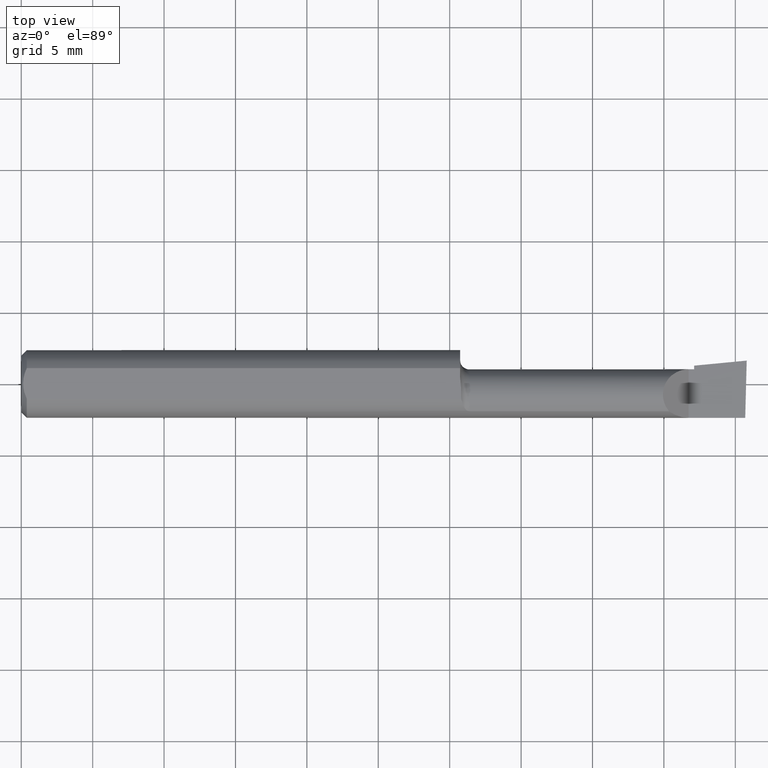
[diagram: clean part render]
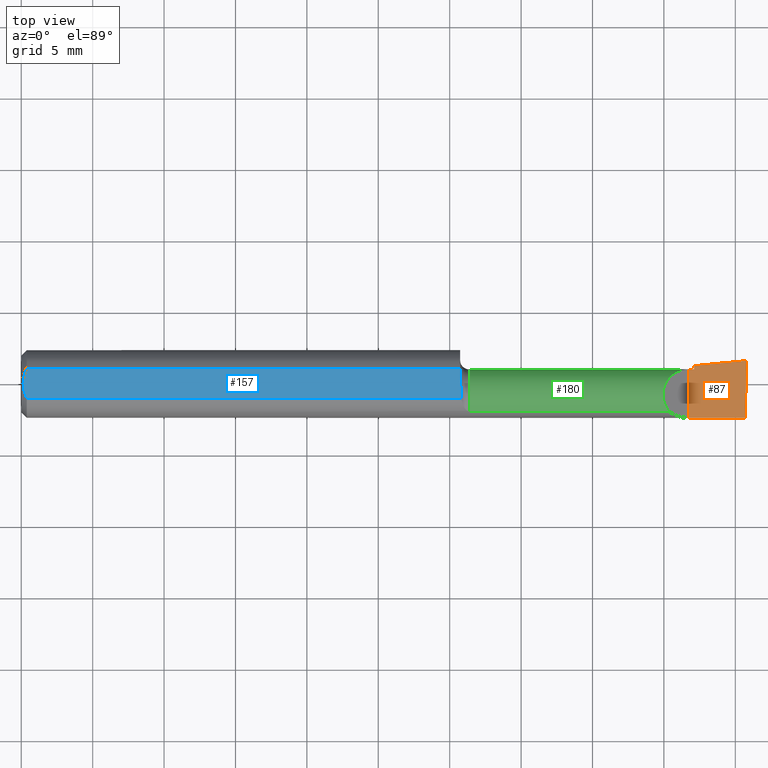
[diagram: same view with three faces highlighted in distinct colors, each labeled with its STEP entity id]
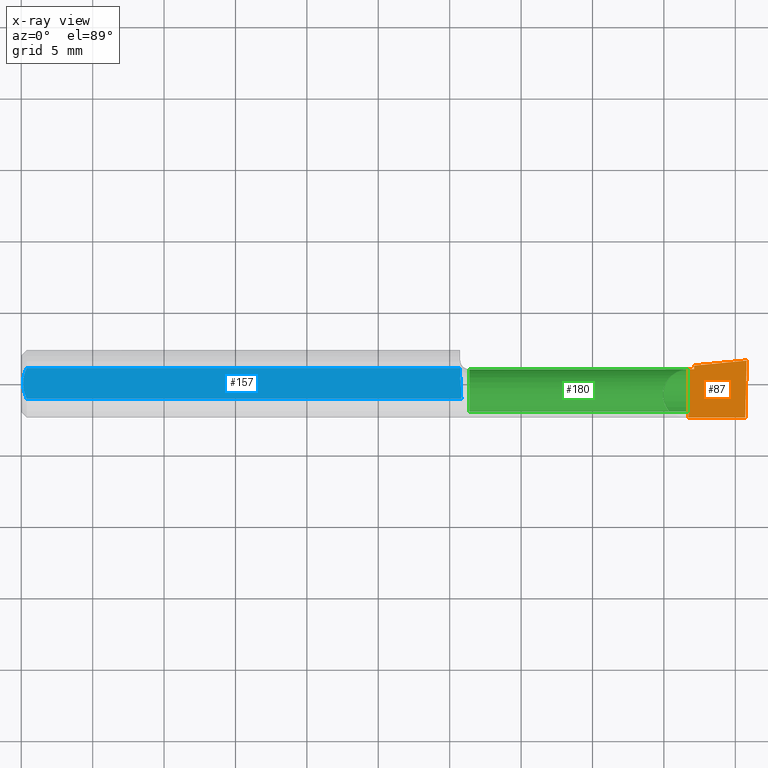
[diagram: x-ray of the same camera — body ghosted, the three highlighted faces saturated]
A machine part, top view with three faces highlighted in distinct colors.
The next image is the same camera in x-ray (body ghosted, the three faces saturated) — at least one of them is partly hidden behind the body in this view.
Their STEP definitions:

[orange] entity #87 — the highlighted planar face has unit normal (-0, 0, -1).
#6 = VECTOR ( 'NONE', #486, 39.37007874015748143 ) ;
#18 = VERTEX_POINT ( 'NONE', #198 ) ;
#30 = CARTESIAN_POINT ( 'NONE',  ( 5.659797890829555466E-31, -0.09359999999999998876, 1.030335658007946046E-15 ) ) ;
#52 = VECTOR ( 'NONE', #259, 39.37007874015748143 ) ;
#55 = PLANE ( 'NONE',  #311 ) ;
#69 = ORIENTED_EDGE ( 'NONE', *, *, #604, .F. ) ;
#75 = LINE ( 'NONE', #30, #246 ) ;
#87 = ADVANCED_FACE ( 'NONE', ( #215 ), #55, .F. ) ;
#110 = CARTESIAN_POINT ( 'NONE',  ( 1.013387277386880392, -0.03060000000000022771, 4.736658843696217583E-16 ) ) ;
#128 = LINE ( 'NONE', #602, #547 ) ;
#131 = EDGE_CURVE ( 'NONE', #390, #307, #219, .T. ) ;
#138 = ORIENTED_EDGE ( 'NONE', *, *, #214, .F. ) ;
#146 = CARTESIAN_POINT ( 'NONE',  ( 1.995862624392068074, -0.09360000000000009979, -6.605666309584466665E-17 ) ) ;
#155 = ORIENTED_EDGE ( 'NONE', *, *, #477, .F. ) ;
#198 = CARTESIAN_POINT ( 'NONE',  ( 1.854999999999999982, 0.05043808801135914177, 1.026577253869148871E-15 ) ) ;
#200 = EDGE_LOOP ( 'NONE', ( #310, #155, #138, #69, #256, #497 ) ) ;
#202 = DIRECTION ( 'NONE',  ( -1.000000000000000000, 0.000000000000000000, 5.493159289247764363E-16 ) ) ;
#214 = EDGE_CURVE ( 'NONE', #618, #18, #315, .T. ) ;
#215 = FACE_OUTER_BOUND ( 'NONE', #200, .T. ) ;
#219 = LINE ( 'NONE', #404, #52 ) ;
#246 = VECTOR ( 'NONE', #552, 39.37007874015748143 ) ;
#256 = ORIENTED_EDGE ( 'NONE', *, *, #419, .F. ) ;
#259 = DIRECTION ( 'NONE',  ( -0.02617694830786939167, -0.9996573249755573709, 1.459184416195897376E-17 ) ) ;
#270 = CARTESIAN_POINT ( 'NONE',  ( 1.854999999999999982, 0.04039999999999999841, 1.030335658007946637E-15 ) ) ;
#277 = CARTESIAN_POINT ( 'NONE',  ( 1.854999999999999982, -0.2500000000000000555, 1.135460985248596835E-17 ) ) ;
#302 = EDGE_CURVE ( 'NONE', #307, #360, #75, .T. ) ;
#307 = VERTEX_POINT ( 'NONE', #146 ) ;
#310 = ORIENTED_EDGE ( 'NONE', *, *, #131, .F. ) ;
#311 = AXIS2_PLACEMENT_3D ( 'NONE', #447, #344, #202 ) ;
#313 = VERTEX_POINT ( 'NONE', #622 ) ;
#315 = LINE ( 'NONE', #277, #401 ) ;
#319 = VECTOR ( 'NONE', #570, 39.37007874015748143 ) ;
#344 = DIRECTION ( 'NONE',  ( -5.493159289247764363E-16, 0.000000000000000000, -1.000000000000000000 ) ) ;
#360 = VERTEX_POINT ( 'NONE', #605 ) ;
#390 = VERTEX_POINT ( 'NONE', #432 ) ;
#391 = CARTESIAN_POINT ( 'NONE',  ( 1.840000000000000080, -0.2500000000000000555, 1.959434878635762025E-17 ) ) ;
#401 = VECTOR ( 'NONE', #592, 39.37007874015748143 ) ;
#404 = CARTESIAN_POINT ( 'NONE',  ( 1.991772787678609324, -0.2497845628634190740, -6.377686106282058433E-17 ) ) ;
#419 = EDGE_CURVE ( 'NONE', #360, #313, #626, .T. ) ;
#432 = CARTESIAN_POINT ( 'NONE',  ( 2.000000000000004441, 0.06440000000001348812, 4.278756920076652249E-14 ) ) ;
#440 = LINE ( 'NONE', #110, #6 ) ;
#447 = CARTESIAN_POINT ( 'NONE',  ( 2.000000000000000000, -0.2500000000000000555, -6.829619984160658046E-17 ) ) ;
#477 = EDGE_CURVE ( 'NONE', #18, #390, #440, .T. ) ;
#486 = DIRECTION ( 'NONE',  ( 0.9953961983671787417, 0.09584575252022466130, -5.467869873542577569E-16 ) ) ;
#497 = ORIENTED_EDGE ( 'NONE', *, *, #302, .F. ) ;
#503 = DIRECTION ( 'NONE',  ( 1.000000000000000000, 4.268512490100411279E-18, 0.000000000000000000 ) ) ;
#547 = VECTOR ( 'NONE', #503, 39.37007874015748143 ) ;
#552 = DIRECTION ( 'NONE',  ( -1.000000000000000000, -0.000000000000000000, -0.000000000000000000 ) ) ;
#570 = DIRECTION ( 'NONE',  ( -0.000000000000000000, 1.000000000000000000, -0.000000000000000000 ) ) ;
#592 = DIRECTION ( 'NONE',  ( -4.268512490100411279E-18, 1.000000000000000000, 2.344761903626518103E-33 ) ) ;
#602 = CARTESIAN_POINT ( 'NONE',  ( -3.030643867965639230E-19, 0.04039999999999993596, 1.030335658007946046E-15 ) ) ;
#604 = EDGE_CURVE ( 'NONE', #313, #618, #128, .T. ) ;
#605 = CARTESIAN_POINT ( 'NONE',  ( 1.840000000000000080, -0.09360000000000005815, 1.959434878635762025E-17 ) ) ;
#618 = VERTEX_POINT ( 'NONE', #270 ) ;
#622 = CARTESIAN_POINT ( 'NONE',  ( 1.840000000000000080, 0.04039999999999985963, 1.959434878635762025E-17 ) ) ;
#626 = LINE ( 'NONE', #391, #319 ) ;

[blue] entity #157 — the highlighted planar face has unit normal (0, -0, -1).
#4 = FACE_OUTER_BOUND ( 'NONE', #188, .T. ) ;
#9 = LINE ( 'NONE', #493, #559 ) ;
#34 = EDGE_CURVE ( 'NONE', #59, #248, #347, .T. ) ;
#50 = CARTESIAN_POINT ( 'NONE',  ( 1.212861144841092864, -0.04209513036041390849, 0.08360000000000000764 ) ) ;
#57 = CARTESIAN_POINT ( 'NONE',  ( 0.005975039161239527503, -0.01453776427033146371, 0.08359999999999996600 ) ) ;
#59 = VERTEX_POINT ( 'NONE', #50 ) ;
#80 = CARTESIAN_POINT ( 'NONE',  ( 0.01500000000000000291, -0.04209513035969835587, 0.08360000000000000764 ) ) ;
#85 = B_SPLINE_CURVE_WITH_KNOTS ( 'NONE', 3,
 ( #455, #318, #364, #321, #274, #267, #369, #177 ),
 .UNSPECIFIED., .F., .F.,
 ( 4, 2, 2, 4 ),
 ( 0.009574067517472211256, 0.01031724332539403835, 0.01068883122935495276, 0.01106041913331586718 ),
 .UNSPECIFIED. ) ;
#94 = VERTEX_POINT ( 'NONE', #103 ) ;
#96 = EDGE_CURVE ( 'NONE', #145, #283, #9, .T. ) ;
#101 = CARTESIAN_POINT ( 'NONE',  ( 0.000000000000000000, -0.04209513035969835587, 0.08360000000000000764 ) ) ;
#103 = CARTESIAN_POINT ( 'NONE',  ( 0.01499999999999999771, 0.04209513035969837669, 0.08360000000000000764 ) ) ;
#105 = CARTESIAN_POINT ( 'NONE',  ( 0.005000000000000237761, 1.025183009042025117E-17, 0.08360000000000000764 ) ) ;
#112 = CARTESIAN_POINT ( 'NONE',  ( 2.000000000000000000, 0.1436000000000000332, 0.08359999999999999376 ) ) ;
#113 = ORIENTED_EDGE ( 'NONE', *, *, #34, .F. ) ;
#126 = LINE ( 'NONE', #355, #303 ) ;
#140 = ORIENTED_EDGE ( 'NONE', *, *, #554, .F. ) ;
#145 = VERTEX_POINT ( 'NONE', #578 ) ;
#148 = B_SPLINE_CURVE_WITH_KNOTS ( 'NONE', 3,
 ( #284, #291, #187, #471, #564, #558 ),
 .UNSPECIFIED., .F., .F.,
 ( 4, 2, 4 ),
 ( 0.006881281100865561072, 0.007427683811376461706, 0.007974086521887361473 ),
 .UNSPECIFIED. ) ;
#157 = ADVANCED_FACE ( 'NONE', ( #4 ), #531, .F. ) ;
#171 = EDGE_CURVE ( 'NONE', #283, #59, #85, .T. ) ;
#177 = CARTESIAN_POINT ( 'NONE',  ( 1.212861144841092864, -0.04209513036041390849, 0.08360000000000000764 ) ) ;
#179 = DIRECTION ( 'NONE',  ( 0.000000000000000000, 1.000000000000000000, -1.189000693621284344E-16 ) ) ;
#187 = CARTESIAN_POINT ( 'NONE',  ( 0.005981829149300847866, 0.01454044632356568667, 0.08360000000000000764 ) ) ;
#188 = EDGE_LOOP ( 'NONE', ( #445, #436, #371, #397, #140, #113 ) ) ;
#199 = CARTESIAN_POINT ( 'NONE',  ( 0.005000000000000237761, 1.025183009042025117E-17, 0.08360000000000000764 ) ) ;
#205 = CARTESIAN_POINT ( 'NONE',  ( 0.01500000000000000291, -0.04209513035969835587, 0.08360000000000000764 ) ) ;
#208 = CARTESIAN_POINT ( 'NONE',  ( 0.005000000000000228220, -0.007328888879231051229, 0.08359999999999999376 ) ) ;
#248 = VERTEX_POINT ( 'NONE', #80 ) ;
#257 = EDGE_CURVE ( 'NONE', #94, #145, #126, .T. ) ;
#267 = CARTESIAN_POINT ( 'NONE',  ( 1.213362255574652604, -0.03233437538769824704, 0.08360000000000003539 ) ) ;
#274 = CARTESIAN_POINT ( 'NONE',  ( 1.213154437539956110, -0.02258334521707476214, 0.08360000000000000764 ) ) ;
#283 = VERTEX_POINT ( 'NONE', #601 ) ;
#284 = CARTESIAN_POINT ( 'NONE',  ( 0.005000000000000237761, 1.025183009042025117E-17, 0.08360000000000000764 ) ) ;
#291 = CARTESIAN_POINT ( 'NONE',  ( 0.005000000000000227353, 0.007308422719211826561, 0.08360000000000000764 ) ) ;
#301 = DIRECTION ( 'NONE',  ( 4.268512490100411279E-18, -1.000000000000000000, 1.189000693621284344E-16 ) ) ;
#303 = VECTOR ( 'NONE', #496, 39.37007874015748143 ) ;
#305 = DIRECTION ( 'NONE',  ( 0.000000000000000000, -1.189000693621284344E-16, -1.000000000000000000 ) ) ;
#318 = CARTESIAN_POINT ( 'NONE',  ( 1.209999999999999742, 0.006742283091807376762, 0.08360000000000003539 ) ) ;
#321 = CARTESIAN_POINT ( 'NONE',  ( 1.212798152027436682, -0.01771129213186534504, 0.08360000000000003539 ) ) ;
#347 = LINE ( 'NONE', #101, #571 ) ;
#353 = DIRECTION ( 'NONE',  ( -1.000000000000000000, -0.000000000000000000, -0.000000000000000000 ) ) ;
#355 = CARTESIAN_POINT ( 'NONE',  ( 0.000000000000000000, 0.04209513035969837669, 0.08360000000000000764 ) ) ;
#364 = CARTESIAN_POINT ( 'NONE',  ( 1.211387404401340406, -0.003099822801829066159, 0.08359999999999999376 ) ) ;
#369 = CARTESIAN_POINT ( 'NONE',  ( 1.213209978243261711, -0.03721340473516406011, 0.08360000000000000764 ) ) ;
#371 = ORIENTED_EDGE ( 'NONE', *, *, #257, .F. ) ;
#383 = EDGE_CURVE ( 'NONE', #439, #94, #148, .T. ) ;
#397 = ORIENTED_EDGE ( 'NONE', *, *, #383, .F. ) ;
#412 = AXIS2_PLACEMENT_3D ( 'NONE', #112, #305, #179 ) ;
#436 = ORIENTED_EDGE ( 'NONE', *, *, #96, .F. ) ;
#439 = VERTEX_POINT ( 'NONE', #199 ) ;
#445 = ORIENTED_EDGE ( 'NONE', *, *, #171, .F. ) ;
#455 = CARTESIAN_POINT ( 'NONE',  ( 1.209999999999999964, 0.01659152466280365210, 0.08360000000000000764 ) ) ;
#471 = CARTESIAN_POINT ( 'NONE',  ( 0.009492654797564340635, 0.02859466010166628394, 0.08359999999999997988 ) ) ;
#493 = CARTESIAN_POINT ( 'NONE',  ( 1.209999999999999964, 0.1436000000000000332, 0.08359999999999999376 ) ) ;
#496 = DIRECTION ( 'NONE',  ( 1.000000000000000000, 0.000000000000000000, 0.000000000000000000 ) ) ;
#531 = PLANE ( 'NONE',  #412 ) ;
#554 = EDGE_CURVE ( 'NONE', #248, #439, #593, .T. ) ;
#558 = CARTESIAN_POINT ( 'NONE',  ( 0.01499999999999999771, 0.04209513035969837669, 0.08360000000000000764 ) ) ;
#559 = VECTOR ( 'NONE', #301, 39.37007874015748143 ) ;
#564 = CARTESIAN_POINT ( 'NONE',  ( 0.01203648650249650870, 0.03550565407121124978, 0.08360000000000000764 ) ) ;
#571 = VECTOR ( 'NONE', #353, 39.37007874015748143 ) ;
#574 = CARTESIAN_POINT ( 'NONE',  ( 0.009539353699420834165, -0.02875682547511369813, 0.08360000000000003539 ) ) ;
#577 = CARTESIAN_POINT ( 'NONE',  ( 0.01206089165507027647, -0.03555991978469315307, 0.08360000000000003539 ) ) ;
#578 = CARTESIAN_POINT ( 'NONE',  ( 1.209999999999999964, 0.04209513035969836975, 0.08360000000000000764 ) ) ;
#593 = B_SPLINE_CURVE_WITH_KNOTS ( 'NONE', 3,
 ( #205, #577, #574, #57, #208, #105 ),
 .UNSPECIFIED., .F., .F.,
 ( 4, 2, 4 ),
 ( 0.005785415439423114564, 0.006333348270144337384, 0.006881281100865561072 ),
 .UNSPECIFIED. ) ;
#601 = CARTESIAN_POINT ( 'NONE',  ( 1.209999999999999964, 0.01659152466280365210, 0.08360000000000000764 ) ) ;

[green] entity #180 — the highlighted cylindrical surface (edge-blend (fillet) strip) has radius 1.8034 mm, axis along (-1, -0, -0).
#1 = CARTESIAN_POINT ( 'NONE',  ( 1.989625015145393139, -0.07608366013071823919, -0.05451822320209416539 ) ) ;
#16 = ORIENTED_EDGE ( 'NONE', *, *, #604, .T. ) ;
#17 = DIRECTION ( 'NONE',  ( 4.268512490100411279E-18, -1.000000000000000000, 0.000000000000000000 ) ) ;
#25 = DIRECTION ( 'NONE',  ( 0.000000000000000000, -1.000000000000000000, 0.000000000000000000 ) ) ;
#41 = CIRCLE ( 'NONE', #95, 0.07100000000000017408 ) ;
#46 = EDGE_CURVE ( 'NONE', #212, #494, #362, .T. ) ;
#47 = CARTESIAN_POINT ( 'NONE',  ( 1.988641161029047755, -0.06318680184005832923, -0.06527786071030766690 ) ) ;
#53 = DIRECTION ( 'NONE',  ( -1.000000000000000000, -4.268512490100411279E-18, -0.000000000000000000 ) ) ;
#76 = VECTOR ( 'NONE', #206, 39.37007874015748143 ) ;
#78 = EDGE_CURVE ( 'NONE', #494, #147, #627, .T. ) ;
#82 =( BOUNDED_CURVE ( )  B_SPLINE_CURVE ( 3, ( #535, #102, #393, #247 ),
 .UNSPECIFIED., .F., .T. ) 
 B_SPLINE_CURVE_WITH_KNOTS ( ( 4, 4 ),
 ( 5.587886473277670518, 7.853981633974482790 ),
 .UNSPECIFIED. ) 
 CURVE ( )  GEOMETRIC_REPRESENTATION_ITEM ( )  RATIONAL_B_SPLINE_CURVE ( ( 1.000000000000000000, 0.6159343746860722613, 0.6159343746860722613, 1.000000000000000000 ) ) 
 REPRESENTATION_ITEM ( '' )  );
#95 = AXIS2_PLACEMENT_3D ( 'NONE', #97, #379, #370 ) ;
#97 = CARTESIAN_POINT ( 'NONE',  ( 1.854999999999999982, -0.03060000000000022424, 0.000000000000000000 ) ) ;
#98 = VERTEX_POINT ( 'NONE', #167 ) ;
#102 = CARTESIAN_POINT ( 'NONE',  ( 1.740893772288689023, -0.02263899945514353737, 0.09910622771130987718 ) ) ;
#123 = DIRECTION ( 'NONE',  ( -1.000000000000000000, 5.691349986800549142E-18, -0.000000000000000000 ) ) ;
#128 = LINE ( 'NONE', #602, #547 ) ;
#147 = VERTEX_POINT ( 'NONE', #154 ) ;
#149 = EDGE_CURVE ( 'NONE', #237, #476, #341, .T. ) ;
#154 = CARTESIAN_POINT ( 'NONE',  ( 1.234999999999999876, -0.07608366013071811429, -0.05451822320209421396 ) ) ;
#161 = DIRECTION ( 'NONE',  ( -1.000000000000000000, -4.268512490100411279E-18, -0.000000000000000000 ) ) ;
#165 = CARTESIAN_POINT ( 'NONE',  ( 1.234999999999999876, -0.03060000000000022771, 0.000000000000000000 ) ) ;
#167 = CARTESIAN_POINT ( 'NONE',  ( 1.854999999999999982, 0.003039038829300973361, -0.06252531540616797223 ) ) ;
#170 = CARTESIAN_POINT ( 'NONE',  ( 0.000000000000000000, -0.03060000000000023118, 0.000000000000000000 ) ) ;
#175 = FACE_OUTER_BOUND ( 'NONE', #406, .T. ) ;
#176 = ORIENTED_EDGE ( 'NONE', *, *, #243, .T. ) ;
#180 = ADVANCED_FACE ( 'NONE', ( #175 ), #226, .T. ) ;
#196 = VECTOR ( 'NONE', #123, 39.37007874015748143 ) ;
#203 = EDGE_CURVE ( 'NONE', #618, #266, #273, .T. ) ;
#206 = DIRECTION ( 'NONE',  ( 1.000000000000000000, 4.268512490100411279E-18, 0.000000000000000000 ) ) ;
#207 = ORIENTED_EDGE ( 'NONE', *, *, #78, .T. ) ;
#212 = VERTEX_POINT ( 'NONE', #233 ) ;
#220 = EDGE_CURVE ( 'NONE', #212, #402, #359, .T. ) ;
#226 = CYLINDRICAL_SURFACE ( 'NONE', #229, 0.07100000000000017408 ) ;
#229 = AXIS2_PLACEMENT_3D ( 'NONE', #170, #550, #17 ) ;
#233 = CARTESIAN_POINT ( 'NONE',  ( 1.988791645263412011, -0.03060000000000022424, -0.07100000000000021572 ) ) ;
#237 = VERTEX_POINT ( 'NONE', #418 ) ;
#243 = EDGE_CURVE ( 'NONE', #98, #402, #431, .T. ) ;
#247 = CARTESIAN_POINT ( 'NONE',  ( 1.840000000000000080, 0.04039999999999985963, 1.959434878635762025E-17 ) ) ;
#266 = VERTEX_POINT ( 'NONE', #539 ) ;
#270 = CARTESIAN_POINT ( 'NONE',  ( 1.854999999999999982, 0.04039999999999999841, 1.030335658007946637E-15 ) ) ;
#273 = CIRCLE ( 'NONE', #349, 0.07100000000000021572 ) ;
#300 = CARTESIAN_POINT ( 'NONE',  ( 1.989625015145393139, -0.07608366013071823919, -0.05451822320209416539 ) ) ;
#312 = CARTESIAN_POINT ( 'NONE',  ( 1.854999999999999982, -0.03060000000000022424, 0.000000000000000000 ) ) ;
#313 = VERTEX_POINT ( 'NONE', #622 ) ;
#316 = ORIENTED_EDGE ( 'NONE', *, *, #507, .F. ) ;
#325 = DIRECTION ( 'NONE',  ( -1.000000000000000000, -4.268512490100411279E-18, -0.000000000000000000 ) ) ;
#340 = EDGE_CURVE ( 'NONE', #98, #266, #41, .T. ) ;
#341 = LINE ( 'NONE', #524, #76 ) ;
#343 = CIRCLE ( 'NONE', #395, 0.07100000000000014633 ) ;
#349 = AXIS2_PLACEMENT_3D ( 'NONE', #462, #416, #25 ) ;
#359 = LINE ( 'NONE', #546, #196 ) ;
#362 =( BOUNDED_CURVE ( )  B_SPLINE_CURVE ( 3, ( #484, #588, #47, #1 ),
 .UNSPECIFIED., .F., .T. ) 
 B_SPLINE_CURVE_WITH_KNOTS ( ( 4, 4 ),
 ( 6.073135862899447623, 6.768434696801360673 ),
 .UNSPECIFIED. ) 
 CURVE ( )  GEOMETRIC_REPRESENTATION_ITEM ( )  RATIONAL_B_SPLINE_CURVE ( ( 1.000000000000000000, 0.9601174178332940734, 0.9601174178332940734, 1.000000000000000000 ) ) 
 REPRESENTATION_ITEM ( '' )  );
#366 = DIRECTION ( 'NONE',  ( 0.000000000000000000, -1.000000000000000000, 0.000000000000000000 ) ) ;
#370 = DIRECTION ( 'NONE',  ( 0.000000000000000000, -1.000000000000000000, 0.000000000000000000 ) ) ;
#379 = DIRECTION ( 'NONE',  ( 1.000000000000000000, 4.268512490100411279E-18, 0.000000000000000000 ) ) ;
#393 = CARTESIAN_POINT ( 'NONE',  ( 1.770398118553868860, 0.04039999999999994984, 0.06960188144613040084 ) ) ;
#395 = AXIS2_PLACEMENT_3D ( 'NONE', #165, #53, #398 ) ;
#398 = DIRECTION ( 'NONE',  ( 0.000000000000000000, -1.000000000000000000, 0.000000000000000000 ) ) ;
#399 = CARTESIAN_POINT ( 'NONE',  ( 1.545000000000000151, -0.07608366013071823919, -0.05451822320209416539 ) ) ;
#402 = VERTEX_POINT ( 'NONE', #421 ) ;
#406 = EDGE_LOOP ( 'NONE', ( #537, #450, #207, #316, #429, #610, #16, #519, #606, #176 ) ) ;
#416 = DIRECTION ( 'NONE',  ( -1.000000000000000000, -4.268512490100411279E-18, -0.000000000000000000 ) ) ;
#418 = CARTESIAN_POINT ( 'NONE',  ( 1.234999999999999876, -0.07608366013071811429, 0.05451822320209421396 ) ) ;
#421 = CARTESIAN_POINT ( 'NONE',  ( 1.854999999999999982, -0.03060000000000022424, -0.07100000000000021572 ) ) ;
#429 = ORIENTED_EDGE ( 'NONE', *, *, #149, .T. ) ;
#431 = CIRCLE ( 'NONE', #505, 0.07100000000000021572 ) ;
#443 = CARTESIAN_POINT ( 'NONE',  ( 1.785481776797905207, -0.07608366013071837797, 0.05451822320209400580 ) ) ;
#450 = ORIENTED_EDGE ( 'NONE', *, *, #46, .T. ) ;
#462 = CARTESIAN_POINT ( 'NONE',  ( 1.854999999999999982, -0.03060000000000022424, 0.000000000000000000 ) ) ;
#476 = VERTEX_POINT ( 'NONE', #443 ) ;
#484 = CARTESIAN_POINT ( 'NONE',  ( 1.988791645263412011, -0.03060000000000022424, -0.07100000000000021572 ) ) ;
#494 = VERTEX_POINT ( 'NONE', #300 ) ;
#503 = DIRECTION ( 'NONE',  ( 1.000000000000000000, 4.268512490100411279E-18, 0.000000000000000000 ) ) ;
#505 = AXIS2_PLACEMENT_3D ( 'NONE', #312, #325, #366 ) ;
#507 = EDGE_CURVE ( 'NONE', #237, #147, #343, .T. ) ;
#519 = ORIENTED_EDGE ( 'NONE', *, *, #203, .T. ) ;
#524 = CARTESIAN_POINT ( 'NONE',  ( 1.545000000000000151, -0.07608366013071823919, 0.05451822320209416539 ) ) ;
#535 = CARTESIAN_POINT ( 'NONE',  ( 1.785481776797905207, -0.07608366013071837797, 0.05451822320209400580 ) ) ;
#537 = ORIENTED_EDGE ( 'NONE', *, *, #220, .F. ) ;
#539 = CARTESIAN_POINT ( 'NONE',  ( 1.854999999999999982, 0.03291555154404710720, -0.03172971339384406814 ) ) ;
#540 = VECTOR ( 'NONE', #161, 39.37007874015748143 ) ;
#546 = CARTESIAN_POINT ( 'NONE',  ( 2.000000000000000000, -0.03060000000000022424, -0.07100000000000021572 ) ) ;
#547 = VECTOR ( 'NONE', #503, 39.37007874015748143 ) ;
#550 = DIRECTION ( 'NONE',  ( -1.000000000000000000, -4.268512490100411279E-18, -0.000000000000000000 ) ) ;
#565 = EDGE_CURVE ( 'NONE', #476, #313, #82, .T. ) ;
#588 = CARTESIAN_POINT ( 'NONE',  ( 1.988351831874612508, -0.04739579569646898416, -0.07100000000000017408 ) ) ;
#602 = CARTESIAN_POINT ( 'NONE',  ( -3.030643867965639230E-19, 0.04039999999999993596, 1.030335658007946046E-15 ) ) ;
#604 = EDGE_CURVE ( 'NONE', #313, #618, #128, .T. ) ;
#606 = ORIENTED_EDGE ( 'NONE', *, *, #340, .F. ) ;
#610 = ORIENTED_EDGE ( 'NONE', *, *, #565, .T. ) ;
#618 = VERTEX_POINT ( 'NONE', #270 ) ;
#622 = CARTESIAN_POINT ( 'NONE',  ( 1.840000000000000080, 0.04039999999999985963, 1.959434878635762025E-17 ) ) ;
#627 = LINE ( 'NONE', #399, #540 ) ;